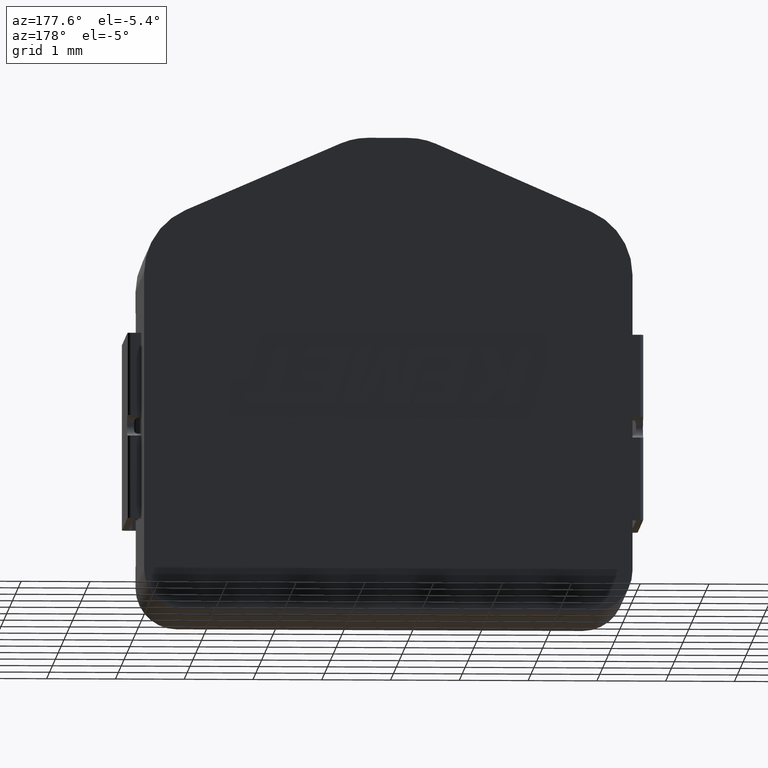
[diagram: clean part render]
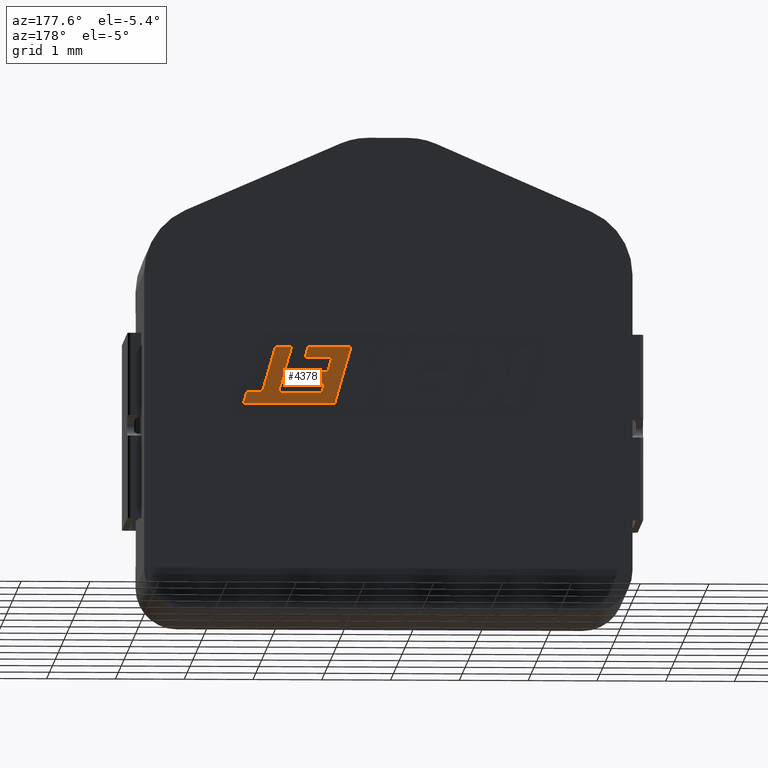
[diagram: same view with one face highlighted and labeled with its STEP entity id]
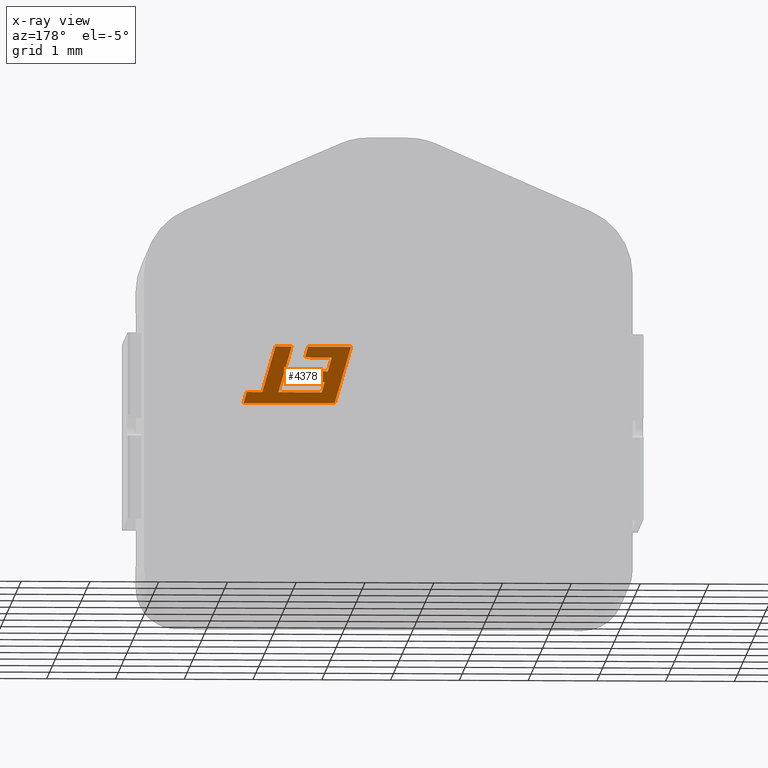
[diagram: x-ray of the same camera — body ghosted, the highlighted face saturated]
A machine part, auxiliary view. The second image highlights one B-rep face of the part: STEP entity #4378.
The next image is the same camera in x-ray: the body ghosted, the highlighted face saturated — about 0% of this face is hidden behind the body in this view.
In plain terms, the highlighted planar face has unit normal (0, 1, -0).
Its self-contained STEP definition (entity closure, byte-faithful):
#80 = EDGE_CURVE ( 'NONE', #1081, #2505, #150, .T. ) ;
#86 = LINE ( 'NONE', #1797, #4498 ) ;
#135 = EDGE_CURVE ( 'NONE', #2893, #953, #4119, .T. ) ;
#150 = LINE ( 'NONE', #3971, #4401 ) ;
#191 = LINE ( 'NONE', #4701, #2185 ) ;
#222 = VERTEX_POINT ( 'NONE', #1426 ) ;
#244 = LINE ( 'NONE', #4633, #2992 ) ;
#283 = CARTESIAN_POINT ( 'NONE',  ( 3.815651111959286600, 3.004999999999999900, -2.728963836854994000 ) ) ;
#285 = CARTESIAN_POINT ( 'NONE',  ( 3.815651111959286600, 3.004999999999999900, -2.728963836854994000 ) ) ;
#309 = LINE ( 'NONE', #1387, #2822 ) ;
#327 = ORIENTED_EDGE ( 'NONE', *, *, #785, .T. ) ;
#370 = LINE ( 'NONE', #4804, #1942 ) ;
#378 = DIRECTION ( 'NONE',  ( -1.000000000000000000, 0.0000000000000000000, -0.0000000000000000000 ) ) ;
#474 = EDGE_CURVE ( 'NONE', #3614, #4823, #886, .T. ) ;
#516 = ORIENTED_EDGE ( 'NONE', *, *, #3152, .T. ) ;
#522 = CARTESIAN_POINT ( 'NONE',  ( 4.007000575218949500, 3.004999999999999900, -3.394501345494890500 ) ) ;
#545 = CARTESIAN_POINT ( 'NONE',  ( 4.467716054780367200, 3.004999999999999900, -3.394483418020517000 ) ) ;
#555 = ORIENTED_EDGE ( 'NONE', *, *, #1437, .T. ) ;
#581 = LINE ( 'NONE', #3204, #4429 ) ;
#591 = VECTOR ( 'NONE', #4322, 1000.000000000000100 ) ;
#672 = DIRECTION ( 'NONE',  ( 1.000000000000000000, 0.0000000000000000000, 0.0000000000000000000 ) ) ;
#777 = EDGE_CURVE ( 'NONE', #4823, #909, #1284, .T. ) ;
#785 = EDGE_CURVE ( 'NONE', #4657, #2893, #309, .T. ) ;
#791 = EDGE_CURVE ( 'NONE', #2505, #1256, #86, .T. ) ;
#795 = ORIENTED_EDGE ( 'NONE', *, *, #4698, .T. ) ;
#886 = LINE ( 'NONE', #4242, #3187 ) ;
#909 = VERTEX_POINT ( 'NONE', #3035 ) ;
#926 = DIRECTION ( 'NONE',  ( 0.2729786930695121100, -9.271319956921572800E-017, -0.9620200793798749900 ) ) ;
#932 = AXIS2_PLACEMENT_3D ( 'NONE', #1911, #1569, #3771 ) ;
#933 = CARTESIAN_POINT ( 'NONE',  ( 3.290149811430506300, 3.004999999999999900, -3.090872631651097300 ) ) ;
#953 = VERTEX_POINT ( 'NONE', #2250 ) ;
#971 = DIRECTION ( 'NONE',  ( 0.2762033010288969000, -9.262445446284567800E-017, -0.9610992334305239500 ) ) ;
#993 = CARTESIAN_POINT ( 'NONE',  ( 3.575353302383757400, 3.004999999999999900, -2.728963836854994000 ) ) ;
#997 = CARTESIAN_POINT ( 'NONE',  ( 4.007000575218949500, 3.004999999999999900, -3.394501345494890500 ) ) ;
#1000 = ORIENTED_EDGE ( 'NONE', *, *, #791, .T. ) ;
#1021 = ORIENTED_EDGE ( 'NONE', *, *, #2098, .T. ) ;
#1051 = VECTOR ( 'NONE', #1366, 1000.000000000000000 ) ;
#1081 = VERTEX_POINT ( 'NONE', #1923 ) ;
#1086 = VERTEX_POINT ( 'NONE', #1198 ) ;
#1099 = ORIENTED_EDGE ( 'NONE', *, *, #80, .T. ) ;
#1152 = CARTESIAN_POINT ( 'NONE',  ( 4.467716054780367200, 3.004999999999999900, -3.394483418020517000 ) ) ;
#1162 = FACE_OUTER_BOUND ( 'NONE', #4577, .T. ) ;
#1188 = VERTEX_POINT ( 'NONE', #522 ) ;
#1198 = CARTESIAN_POINT ( 'NONE',  ( 3.619887820975604700, 3.004999999999999900, -2.885910522433725600 ) ) ;
#1200 = ORIENTED_EDGE ( 'NONE', *, *, #1355, .T. ) ;
#1212 = LINE ( 'NONE', #997, #2466 ) ;
#1256 = VERTEX_POINT ( 'NONE', #3877 ) ;
#1284 = LINE ( 'NONE', #2136, #3815 ) ;
#1316 = EDGE_CURVE ( 'NONE', #3021, #2935, #1821, .T. ) ;
#1355 = EDGE_CURVE ( 'NONE', #2935, #1637, #3933, .T. ) ;
#1366 = DIRECTION ( 'NONE',  ( 0.2762437428917329800, -9.262333429361840300E-017, -0.9610876102172819500 ) ) ;
#1373 = DIRECTION ( 'NONE',  ( 0.9999891854650020400, 4.482034355129687800E-019, 0.004650693823683842500 ) ) ;
#1387 = CARTESIAN_POINT ( 'NONE',  ( 3.231636499808257000, 3.004999999999999900, -2.885910522433725600 ) ) ;
#1426 = CARTESIAN_POINT ( 'NONE',  ( 3.687604966545133600, 3.005000000000000300, -3.243320222380187800 ) ) ;
#1437 = EDGE_CURVE ( 'NONE', #1086, #4657, #3142, .T. ) ;
#1451 = DIRECTION ( 'NONE',  ( -1.000000000000000000, 0.0000000000000000000, -0.0000000000000000000 ) ) ;
#1569 = DIRECTION ( 'NONE',  ( 0.0000000000000000000, 1.000000000000000000, -9.637345576921772200E-017 ) ) ;
#1637 = VERTEX_POINT ( 'NONE', #2740 ) ;
#1718 = CARTESIAN_POINT ( 'NONE',  ( 3.231636499808257000, 3.004999999999999900, -2.885910522433725600 ) ) ;
#1719 = CARTESIAN_POINT ( 'NONE',  ( 4.241896461545553400, 3.004999999999999900, -3.394501345492823700 ) ) ;
#1727 = CARTESIAN_POINT ( 'NONE',  ( 4.050602171132853300, 3.004999999999999900, -2.728963836854994000 ) ) ;
#1729 = ORIENTED_EDGE ( 'NONE', *, *, #1316, .T. ) ;
#1745 = DIRECTION ( 'NONE',  ( 1.000000000000000000, 0.0000000000000000000, 0.0000000000000000000 ) ) ;
#1797 = CARTESIAN_POINT ( 'NONE',  ( 3.189439304286957100, 3.004999999999999900, -3.553752751347214000 ) ) ;
#1799 = CARTESIAN_POINT ( 'NONE',  ( 3.333651093078017400, 3.005000000000000300, -3.243320222380187800 ) ) ;
#1821 = LINE ( 'NONE', #285, #4670 ) ;
#1911 = CARTESIAN_POINT ( 'NONE',  ( -0.9735785225890778400, 3.005000000000000300, 0.6853031351350324900 ) ) ;
#1923 = CARTESIAN_POINT ( 'NONE',  ( 4.513487307203996900, 3.004999999999999900, -3.553752751347214000 ) ) ;
#1942 = VECTOR ( 'NONE', #2579, 1000.000000000000000 ) ;
#2098 = EDGE_CURVE ( 'NONE', #222, #3614, #2285, .T. ) ;
#2112 = VECTOR ( 'NONE', #378, 1000.000000000000000 ) ;
#2130 = DIRECTION ( 'NONE',  ( -0.2763173343569809100, 9.262129548257395200E-017, 0.9610664548998952800 ) ) ;
#2136 = CARTESIAN_POINT ( 'NONE',  ( 3.378290941649760600, 3.004999999999999900, -3.396730830067153000 ) ) ;
#2168 = DIRECTION ( 'NONE',  ( 0.9999960426590095400, 2.711276046396867900E-019, 0.002813301676023186900 ) ) ;
#2185 = VECTOR ( 'NONE', #926, 1000.000000000000200 ) ;
#2186 = VERTEX_POINT ( 'NONE', #1152 ) ;
#2250 = CARTESIAN_POINT ( 'NONE',  ( 3.644053527764386400, 3.004999999999999900, -3.090872631651097300 ) ) ;
#2285 = LINE ( 'NONE', #3726, #2112 ) ;
#2392 = CARTESIAN_POINT ( 'NONE',  ( 3.378290941649760600, 3.004999999999999900, -3.396730830067153000 ) ) ;
#2408 = DIRECTION ( 'NONE',  ( -1.000000000000000000, 0.0000000000000000000, -0.0000000000000000000 ) ) ;
#2409 = EDGE_CURVE ( 'NONE', #1188, #3021, #1212, .T. ) ;
#2425 = CARTESIAN_POINT ( 'NONE',  ( 3.290149811430506300, 3.004999999999999900, -3.090872631651097300 ) ) ;
#2466 = VECTOR ( 'NONE', #2130, 1000.000000000000000 ) ;
#2485 = DIRECTION ( 'NONE',  ( 1.000000000000000000, 0.0000000000000000000, 0.0000000000000000000 ) ) ;
#2505 = VERTEX_POINT ( 'NONE', #3233 ) ;
#2541 = DIRECTION ( 'NONE',  ( 0.2745159998572679900, -9.267103161489322900E-017, -0.9615825319869140100 ) ) ;
#2579 = DIRECTION ( 'NONE',  ( 0.2746918797667231000, -9.266619094790076700E-017, -0.9615323037684299100 ) ) ;
#2740 = CARTESIAN_POINT ( 'NONE',  ( 4.241896461545553400, 3.004999999999999900, -3.394501345492823700 ) ) ;
#2804 = ORIENTED_EDGE ( 'NONE', *, *, #2409, .T. ) ;
#2822 = VECTOR ( 'NONE', #2541, 1000.000000000000000 ) ;
#2882 = CARTESIAN_POINT ( 'NONE',  ( 4.050602171132853300, 3.004999999999999900, -2.728963836854994000 ) ) ;
#2893 = VERTEX_POINT ( 'NONE', #933 ) ;
#2935 = VERTEX_POINT ( 'NONE', #1727 ) ;
#2971 = VERTEX_POINT ( 'NONE', #993 ) ;
#2992 = VECTOR ( 'NONE', #1373, 1000.000000000000200 ) ;
#3021 = VERTEX_POINT ( 'NONE', #283 ) ;
#3035 = CARTESIAN_POINT ( 'NONE',  ( 3.756255034792675800, 3.004999999999999900, -3.395667498842473100 ) ) ;
#3138 = ORIENTED_EDGE ( 'NONE', *, *, #3546, .T. ) ;
#3142 = LINE ( 'NONE', #4060, #4413 ) ;
#3152 = EDGE_CURVE ( 'NONE', #953, #222, #370, .T. ) ;
#3161 = ORIENTED_EDGE ( 'NONE', *, *, #777, .T. ) ;
#3187 = VECTOR ( 'NONE', #3518, 1000.000000000000200 ) ;
#3204 = CARTESIAN_POINT ( 'NONE',  ( 2.952201079175948500, 3.004999999999999900, -2.728963836854994000 ) ) ;
#3233 = CARTESIAN_POINT ( 'NONE',  ( 3.189439304286957100, 3.004999999999999900, -3.553752751347214000 ) ) ;
#3452 = EDGE_CURVE ( 'NONE', #2971, #1086, #191, .T. ) ;
#3486 = EDGE_CURVE ( 'NONE', #1637, #2186, #3581, .T. ) ;
#3498 = ORIENTED_EDGE ( 'NONE', *, *, #3452, .T. ) ;
#3518 = DIRECTION ( 'NONE',  ( 0.2793947940814895400, -9.253550928069344500E-017, -0.9601763114346041400 ) ) ;
#3546 = EDGE_CURVE ( 'NONE', #2186, #1081, #4382, .T. ) ;
#3581 = LINE ( 'NONE', #1719, #591 ) ;
#3614 = VERTEX_POINT ( 'NONE', #1799 ) ;
#3723 = VECTOR ( 'NONE', #2485, 1000.000000000000000 ) ;
#3726 = CARTESIAN_POINT ( 'NONE',  ( 3.687604966545133600, 3.005000000000000300, -3.243320222380187800 ) ) ;
#3771 = DIRECTION ( 'NONE',  ( 0.0000000000000000000, 9.637345576921772200E-017, 1.000000000000000000 ) ) ;
#3815 = VECTOR ( 'NONE', #2168, 1000.000000000000100 ) ;
#3877 = CARTESIAN_POINT ( 'NONE',  ( 2.952201079175948500, 3.004999999999999900, -2.728963836854994000 ) ) ;
#3933 = LINE ( 'NONE', #2882, #1051 ) ;
#3971 = CARTESIAN_POINT ( 'NONE',  ( 4.513487307203996900, 3.004999999999999900, -3.553752751347214000 ) ) ;
#3976 = ORIENTED_EDGE ( 'NONE', *, *, #3486, .T. ) ;
#4060 = CARTESIAN_POINT ( 'NONE',  ( 3.619887820975604700, 3.004999999999999900, -2.885910522433725600 ) ) ;
#4119 = LINE ( 'NONE', #2425, #3723 ) ;
#4216 = VECTOR ( 'NONE', #971, 1000.000000000000000 ) ;
#4242 = CARTESIAN_POINT ( 'NONE',  ( 3.333651093078017400, 3.005000000000000300, -3.243320222380187800 ) ) ;
#4322 = DIRECTION ( 'NONE',  ( 0.9999999968487352000, 7.650941307961965300E-021, 7.938847109813534800E-005 ) ) ;
#4376 = ORIENTED_EDGE ( 'NONE', *, *, #4528, .T. ) ;
#4378 = ADVANCED_FACE ( 'NONE', ( #1162 ), #4532, .T. ) ;
#4382 = LINE ( 'NONE', #545, #4216 ) ;
#4390 = DIRECTION ( 'NONE',  ( -0.2764273280489760200, 9.261824707170264900E-017, 0.9610348236706637300 ) ) ;
#4401 = VECTOR ( 'NONE', #2408, 1000.000000000000000 ) ;
#4411 = ORIENTED_EDGE ( 'NONE', *, *, #474, .T. ) ;
#4413 = VECTOR ( 'NONE', #1451, 1000.000000000000000 ) ;
#4429 = VECTOR ( 'NONE', #672, 1000.000000000000000 ) ;
#4498 = VECTOR ( 'NONE', #4390, 1000.000000000000000 ) ;
#4528 = EDGE_CURVE ( 'NONE', #909, #1188, #244, .T. ) ;
#4532 = PLANE ( 'NONE',  #932 ) ;
#4577 = EDGE_LOOP ( 'NONE', ( #3161, #4376, #2804, #1729, #1200, #3976, #3138, #1099, #1000, #795, #3498, #555, #327, #4683, #516, #1021, #4411 ) ) ;
#4633 = CARTESIAN_POINT ( 'NONE',  ( 3.756255034792675800, 3.004999999999999900, -3.395667498842473100 ) ) ;
#4657 = VERTEX_POINT ( 'NONE', #1718 ) ;
#4670 = VECTOR ( 'NONE', #1745, 1000.000000000000000 ) ;
#4683 = ORIENTED_EDGE ( 'NONE', *, *, #135, .T. ) ;
#4698 = EDGE_CURVE ( 'NONE', #1256, #2971, #581, .T. ) ;
#4701 = CARTESIAN_POINT ( 'NONE',  ( 3.575353302383757400, 3.004999999999999900, -2.728963836854994000 ) ) ;
#4804 = CARTESIAN_POINT ( 'NONE',  ( 3.644053527764386400, 3.004999999999999900, -3.090872631651097300 ) ) ;
#4823 = VERTEX_POINT ( 'NONE', #2392 ) ;